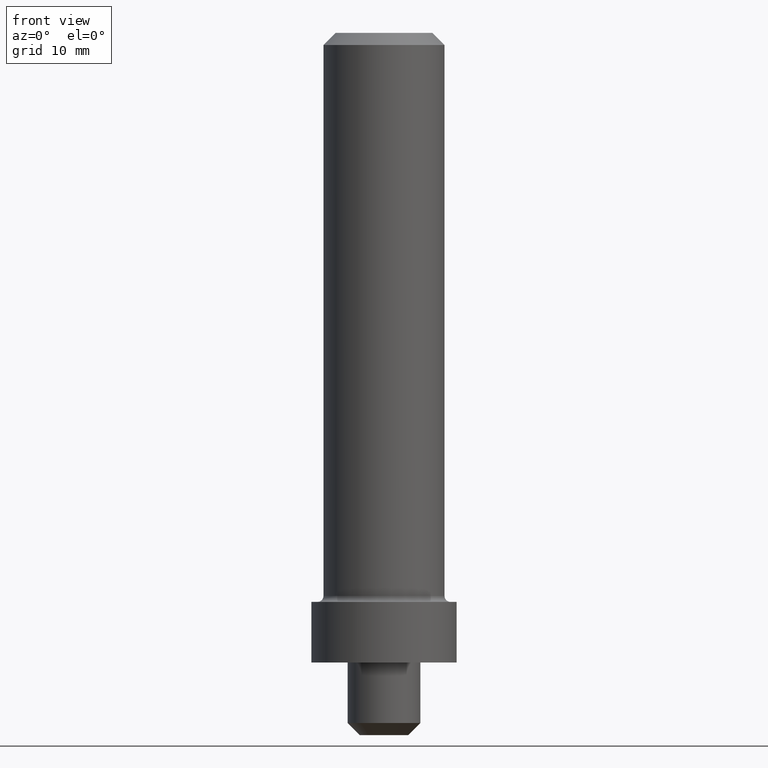
[diagram: clean part render]
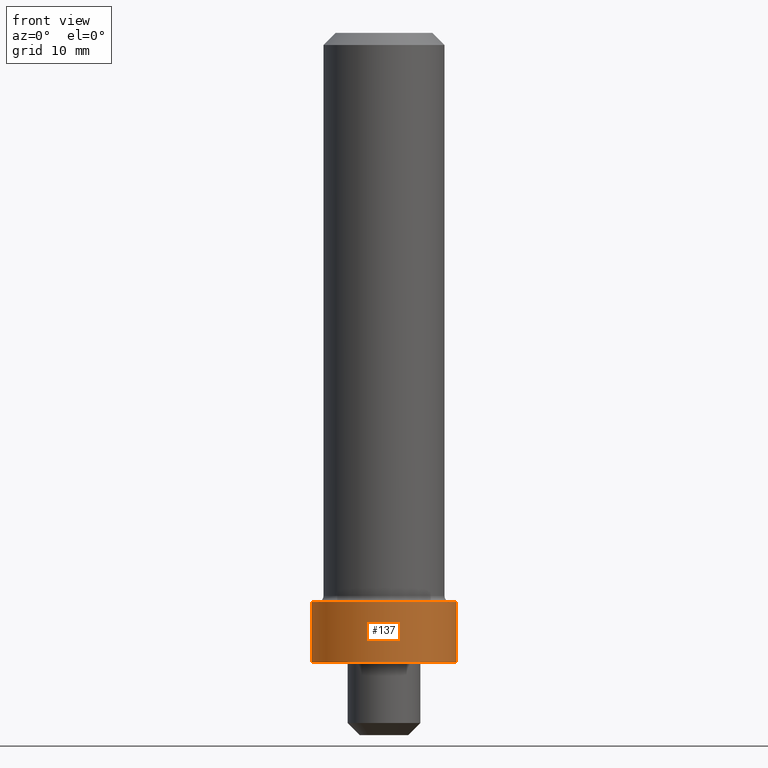
[diagram: same view with one face highlighted and labeled with its STEP entity id]
A machine part, front view. The second image highlights one B-rep face of the part: STEP entity #137.
In plain terms, the highlighted cylindrical surface (partial cylindrical patch) has radius 6 mm, axis along (-0, -0, 1).
Its self-contained STEP definition (entity closure, byte-faithful):
#137=ADVANCED_FACE('NONE',(#341),#342,.T.);
#145=EDGE_CURVE('NONE',#197,#169,#351,.T.);
#169=VERTEX_POINT('NONE',#382);
#173=VERTEX_POINT('NONE',#387);
#197=VERTEX_POINT('NONE',#412);
#213=VERTEX_POINT('NONE',#432);
#243=EDGE_CURVE('NONE',#197,#213,#468,.T.);
#279=EDGE_CURVE('NONE',#169,#173,#506,.T.);
#301=EDGE_CURVE('NONE',#213,#173,#529,.T.);
#341=FACE_OUTER_BOUND('',#569,.T.);
#342=CYLINDRICAL_SURFACE('',#570,6.0);
#351=CIRCLE('',#581,6.0);
#382=CARTESIAN_POINT('',(6.0,0.0,0.0));
#387=CARTESIAN_POINT('',(6.0,0.0,5.0));
#412=CARTESIAN_POINT('',(-6.0,7.34763812293426E-016,0.0));
#432=CARTESIAN_POINT('',(-6.0,7.34763812293426E-016,5.0));
#468=LINE('',#723,#724);
#506=LINE('',#775,#776);
#529=CIRCLE('',#806,6.0);
#569=EDGE_LOOP('',(#837,#838,#839,#840));
#570=AXIS2_PLACEMENT_3D('',#841,#842,#843);
#581=AXIS2_PLACEMENT_3D('',#855,#856,#857);
#723=CARTESIAN_POINT('',(-6.0,7.34763812293426E-016,44.3839792060492));
#724=VECTOR('',#1027,1000.0);
#775=CARTESIAN_POINT('',(6.0,0.0,44.3839792060492));
#776=VECTOR('',#1060,1000.0);
#806=AXIS2_PLACEMENT_3D('',#1082,#1083,#1084);
#837=ORIENTED_EDGE('',*,*,#243,.F.);
#838=ORIENTED_EDGE('',*,*,#145,.T.);
#839=ORIENTED_EDGE('',*,*,#279,.T.);
#840=ORIENTED_EDGE('',*,*,#301,.F.);
#841=CARTESIAN_POINT('',(0.0,0.0,44.3839792060492));
#842=DIRECTION('',(-0.0,-0.0,1.0));
#843=DIRECTION('',(1.0,0.0,0.0));
#855=CARTESIAN_POINT('',(0.0,0.0,0.0));
#856=DIRECTION('',(0.0,0.0,1.0));
#857=DIRECTION('',(1.0,0.0,0.0));
#1027=DIRECTION('',(-0.0,0.0,1.0));
#1060=DIRECTION('',(-0.0,0.0,1.0));
#1082=CARTESIAN_POINT('',(0.0,0.0,5.0));
#1083=DIRECTION('',(0.0,0.0,1.0));
#1084=DIRECTION('',(1.0,0.0,0.0));